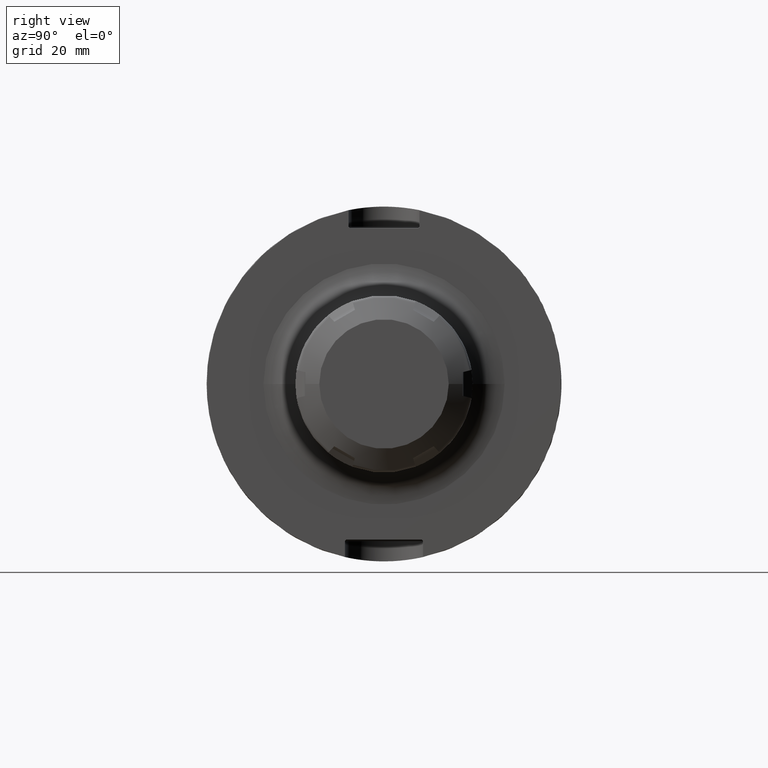
[diagram: clean part render]
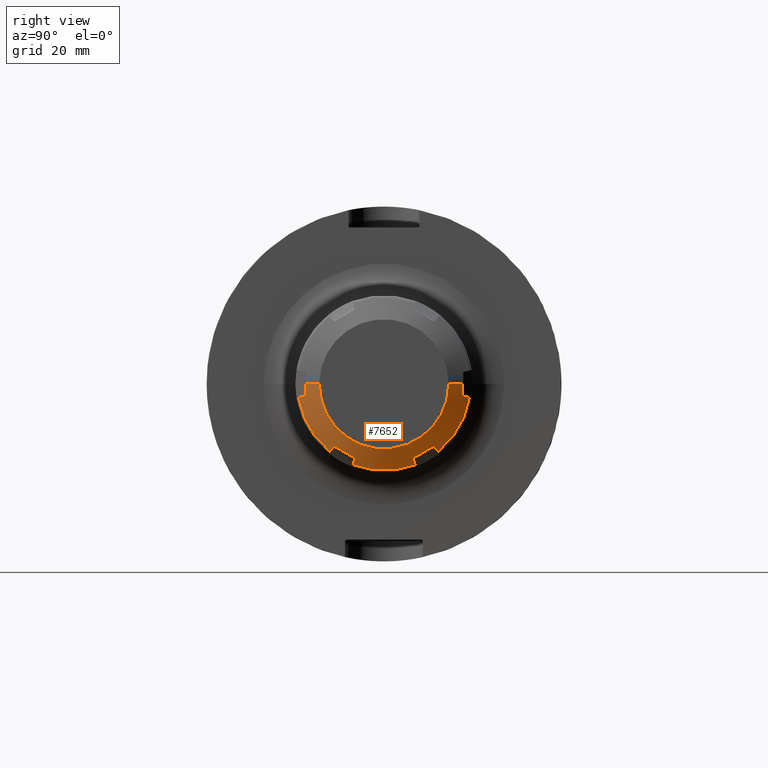
[diagram: same view with one face highlighted and labeled with its STEP entity id]
A machine part, right view. The second image highlights one B-rep face of the part: STEP entity #7652.
In plain terms, the highlighted conical surface has half-angle 60 deg.
Its self-contained STEP definition (entity closure, byte-faithful):
#6798=CARTESIAN_POINT('',(2.007435737753E1,1.400118510268E1,-1.755076396401E1));
#6799=CARTESIAN_POINT('',(1.989202963548E1,1.422154361045E1,-1.777895187872E1));
#6800=CARTESIAN_POINT('',(1.952459463873E1,1.466553630405E1,-1.823871977204E1));
#6801=CARTESIAN_POINT('',(1.915160861205E1,1.511608354504E1,-1.870527509788E1));
#6802=CARTESIAN_POINT('',(1.896372960121E1,1.534299650585E1,-1.894025034738E1));
#6804=CARTESIAN_POINT('',(2.007435737753E1,8.198814897322E0,-2.090076396401E1));
#6805=CARTESIAN_POINT('',(2.013850261850E1,8.843656557694E0,-2.052846445781E1));
#6806=CARTESIAN_POINT('',(2.022485531472E1,1.013317723897E1,-1.978395934535E1));
#6807=CARTESIAN_POINT('',(2.022485360844E1,1.206686210227E1,-1.866754586900E1));
#6808=CARTESIAN_POINT('',(2.013850094754E1,1.335636024026E1,-1.792305377191E1));
#6809=CARTESIAN_POINT('',(2.007435737753E1,1.400118510268E1,-1.755076396401E1));
#6811=CARTESIAN_POINT('',(1.896372960121E1,8.731239701949E0,-2.275754991793E1));
#6812=CARTESIAN_POINT('',(1.915154885340E1,8.641230285410E0,-2.244364977861E1));
#6813=CARTESIAN_POINT('',(1.952447514954E1,8.462483784300E0,-2.182028664885E1));
#6814=CARTESIAN_POINT('',(1.989196990744E1,8.286280817645E0,-2.120579387789E1));
#6815=CARTESIAN_POINT('',(2.007435737753E1,8.198814897322E0,-2.090076396401E1));
#6817=CARTESIAN_POINT('',(1.896372960121E1,0.E0,0.E0));
#6818=DIRECTION('',(-1.E0,0.E0,0.E0));
#6819=DIRECTION('',(0.E0,3.582047057210E-1,-9.336430735561E-1));
#6820=AXIS2_PLACEMENT_3D('',#6817,#6818,#6819);
#6822=CARTESIAN_POINT('',(2.007435737753E1,-8.198814897322E0,
-2.090076396401E1));
#6823=CARTESIAN_POINT('',(1.989202963548E1,-8.286252174404E0,
-2.120569398704E1));
#6824=CARTESIAN_POINT('',(1.952459463873E1,-8.462426503065E0,
-2.182008688545E1));
#6825=CARTESIAN_POINT('',(1.915160861205E1,-8.641201647020E0,
-2.244354990467E1));
#6826=CARTESIAN_POINT('',(1.896372960121E1,-8.731239701949E0,
-2.275754991793E1));
#6828=CARTESIAN_POINT('',(2.007435737753E1,-1.400118510268E1,
-1.755076396401E1));
#6829=CARTESIAN_POINT('',(2.013850261850E1,-1.335634344231E1,
-1.792306347021E1));
#6830=CARTESIAN_POINT('',(2.022485531472E1,-1.206682276103E1,
-1.866756858268E1));
#6831=CARTESIAN_POINT('',(2.022485360844E1,-1.013313789773E1,
-1.978398205903E1));
#6832=CARTESIAN_POINT('',(2.013850094754E1,-8.843639759743E0,
-2.052847415612E1));
#6833=CARTESIAN_POINT('',(2.007435737753E1,-8.198814897322E0,
-2.090076396401E1));
#6835=CARTESIAN_POINT('',(1.896372960121E1,-1.534299650585E1,
-1.894025034738E1));
#6836=CARTESIAN_POINT('',(1.915154885340E1,-1.511615571921E1,
-1.870534983642E1));
#6837=CARTESIAN_POINT('',(1.952447514954E1,-1.466568066362E1,
-1.823886926074E1));
#6838=CARTESIAN_POINT('',(1.989196990744E1,-1.422161579685E1,
-1.777902662992E1));
#6839=CARTESIAN_POINT('',(2.007435737753E1,-1.400118510268E1,
-1.755076396401E1));
#6841=CARTESIAN_POINT('',(1.896372960121E1,0.E0,0.E0));
#6842=DIRECTION('',(-1.E0,0.E0,0.E0));
#6843=DIRECTION('',(0.E0,-6.294562669065E-1,-7.770359116876E-1));
#6844=AXIS2_PLACEMENT_3D('',#6841,#6842,#6843);
#6846=CARTESIAN_POINT('',(2.007435737753E1,-2.22E1,-3.35E0));
#6847=CARTESIAN_POINT('',(1.989202963548E1,-2.250779578486E1,
-3.426742108322E0));
#6848=CARTESIAN_POINT('',(1.952459463873E1,-2.312796280711E1,
-3.581367113410E0));
#6849=CARTESIAN_POINT('',(1.915160861205E1,-2.375728519206E1,
-3.738274806794E0));
#6850=CARTESIAN_POINT('',(1.896372960121E1,-2.407423620780E1,
-3.817299570546E0));
#6852=CARTESIAN_POINT('',(2.021946643670E1,-2.22E1,-4.505137681520E-14));
#6853=CARTESIAN_POINT('',(2.021946643670E1,-2.22E1,-3.723412104007E-1));
#6854=CARTESIAN_POINT('',(2.020864224929E1,-2.22E1,-1.116942255784E0));
#6855=CARTESIAN_POINT('',(2.016008769471E1,-2.22E1,-2.233495806650E0));
#6856=CARTESIAN_POINT('',(2.010641792581E1,-2.22E1,-2.977840628173E0));
#6857=CARTESIAN_POINT('',(2.007435737753E1,-2.22E1,-3.35E0));
#6859=DIRECTION('',(-5.E-1,-8.660254037844E-1,0.E0));
#6860=VECTOR('',#6859,4.561067126598E0);
#6861=CARTESIAN_POINT('',(2.25E1,-1.825E1,0.E0));
#6862=LINE('',#6861,#6860);
#6863=CARTESIAN_POINT('',(2.25E1,0.E0,0.E0));
#6864=DIRECTION('',(-1.E0,0.E0,0.E0));
#6865=DIRECTION('',(0.E0,1.E0,0.E0));
#6866=AXIS2_PLACEMENT_3D('',#6863,#6864,#6865);
#6868=DIRECTION('',(-5.E-1,8.660254037844E-1,0.E0));
#6869=VECTOR('',#6868,4.561067126598E0);
#6870=CARTESIAN_POINT('',(2.25E1,1.825E1,0.E0));
#6871=LINE('',#6870,#6869);
#6872=CARTESIAN_POINT('',(2.007435737753E1,2.22E1,-3.35E0));
#6873=CARTESIAN_POINT('',(2.010642291935E1,2.22E1,-2.977782663007E0));
#6874=CARTESIAN_POINT('',(2.016009585532E1,2.22E1,-2.233360618265E0));
#6875=CARTESIAN_POINT('',(2.020864465134E1,2.22E1,-1.116836975823E0));
#6876=CARTESIAN_POINT('',(2.021946643670E1,2.22E1,-3.722962341462E-1));
#6877=CARTESIAN_POINT('',(2.021946643670E1,2.22E1,0.E0));
#6879=CARTESIAN_POINT('',(1.896372960121E1,2.407423620780E1,-3.817299570546E0));
#6880=CARTESIAN_POINT('',(1.915154885340E1,2.375738600462E1,-3.738299942188E0));
#6881=CARTESIAN_POINT('',(1.952447514954E1,2.312816444792E1,-3.581417388109E0));
#6882=CARTESIAN_POINT('',(1.989196990744E1,2.250789661449E1,-3.426767247974E0));
#6883=CARTESIAN_POINT('',(2.007435737753E1,2.22E1,-3.35E0));
#6885=CARTESIAN_POINT('',(1.896372960121E1,0.E0,0.E0));
#6886=DIRECTION('',(-1.E0,0.E0,0.E0));
#6887=DIRECTION('',(0.E0,9.876609726275E-1,-1.566071618686E-1));
#6888=AXIS2_PLACEMENT_3D('',#6885,#6886,#6887);
#7157=CARTESIAN_POINT('',(2.021946643670E1,-2.22E1,-4.505137681520E-14));
#7224=CARTESIAN_POINT('',(2.021946643670E1,2.22E1,0.E0));
#7494=CARTESIAN_POINT('',(2.25E1,1.825E1,0.E0));
#7495=CARTESIAN_POINT('',(2.25E1,-1.825E1,0.E0));
#7496=VERTEX_POINT('',#7494);
#7497=VERTEX_POINT('',#7495);
#7508=VERTEX_POINT('',#7224);
#7509=VERTEX_POINT('',#6872);
#7510=VERTEX_POINT('',#6879);
#7553=VERTEX_POINT('',#7157);
#7555=VERTEX_POINT('',#6846);
#7556=VERTEX_POINT('',#6850);
#7568=VERTEX_POINT('',#6822);
#7569=VERTEX_POINT('',#6826);
#7570=VERTEX_POINT('',#6828);
#7571=VERTEX_POINT('',#6835);
#7583=VERTEX_POINT('',#6798);
#7584=VERTEX_POINT('',#6802);
#7585=VERTEX_POINT('',#6804);
#7586=VERTEX_POINT('',#6811);
#7614=CARTESIAN_POINT('',(2.073186480061E1,0.E0,0.E0));
#7615=DIRECTION('',(-1.E0,0.E0,0.E0));
#7616=DIRECTION('',(0.E0,1.E0,0.E0));
#7617=AXIS2_PLACEMENT_3D('',#7614,#7615,#7616);
#7618=CONICAL_SURFACE('',#7617,2.13125E1,6.E1);
#7620=ORIENTED_EDGE('',*,*,#7619,.F.);
#7622=ORIENTED_EDGE('',*,*,#7621,.F.);
#7624=ORIENTED_EDGE('',*,*,#7623,.F.);
#7626=ORIENTED_EDGE('',*,*,#7625,.T.);
#7628=ORIENTED_EDGE('',*,*,#7627,.F.);
#7630=ORIENTED_EDGE('',*,*,#7629,.F.);
#7632=ORIENTED_EDGE('',*,*,#7631,.F.);
#7634=ORIENTED_EDGE('',*,*,#7633,.T.);
#7636=ORIENTED_EDGE('',*,*,#7635,.F.);
#7638=ORIENTED_EDGE('',*,*,#7637,.F.);
#7640=ORIENTED_EDGE('',*,*,#7639,.F.);
#7641=ORIENTED_EDGE('',*,*,#7607,.F.);
#7643=ORIENTED_EDGE('',*,*,#7642,.T.);
#7645=ORIENTED_EDGE('',*,*,#7644,.F.);
#7647=ORIENTED_EDGE('',*,*,#7646,.F.);
#7649=ORIENTED_EDGE('',*,*,#7648,.T.);
#7650=EDGE_LOOP('',(#7620,#7622,#7624,#7626,#7628,#7630,#7632,#7634,#7636,#7638,
#7640,#7641,#7643,#7645,#7647,#7649));
#7651=FACE_OUTER_BOUND('',#7650,.F.);
#7652=ADVANCED_FACE('',(#7651),#7618,.T.);
#6803=B_SPLINE_CURVE_WITH_KNOTS('',3,(#6798,#6799,#6800,#6801,#6802),
.UNSPECIFIED.,.F.,.F.,(4,1,4),(0.E0,5.E-1,1.E0),.UNSPECIFIED.);
#6810=B_SPLINE_CURVE_WITH_KNOTS('',3,(#6804,#6805,#6806,#6807,#6808,#6809),
.UNSPECIFIED.,.F.,.F.,(4,1,1,4),(0.E0,3.333333333333E-1,6.666666666667E-1,1.E0),
.UNSPECIFIED.);
#6816=B_SPLINE_CURVE_WITH_KNOTS('',3,(#6811,#6812,#6813,#6814,#6815),
.UNSPECIFIED.,.F.,.F.,(4,1,4),(0.E0,5.E-1,1.E0),.UNSPECIFIED.);
#6821=CIRCLE('',#6820,2.4375E1);
#6827=B_SPLINE_CURVE_WITH_KNOTS('',3,(#6822,#6823,#6824,#6825,#6826),
.UNSPECIFIED.,.F.,.F.,(4,1,4),(0.E0,5.E-1,1.E0),.UNSPECIFIED.);
#6834=B_SPLINE_CURVE_WITH_KNOTS('',3,(#6828,#6829,#6830,#6831,#6832,#6833),
.UNSPECIFIED.,.F.,.F.,(4,1,1,4),(0.E0,3.333333333333E-1,6.666666666667E-1,1.E0),
.UNSPECIFIED.);
#6840=B_SPLINE_CURVE_WITH_KNOTS('',3,(#6835,#6836,#6837,#6838,#6839),
.UNSPECIFIED.,.F.,.F.,(4,1,4),(0.E0,5.E-1,1.E0),.UNSPECIFIED.);
#6845=CIRCLE('',#6844,2.4375E1);
#6851=B_SPLINE_CURVE_WITH_KNOTS('',3,(#6846,#6847,#6848,#6849,#6850),
.UNSPECIFIED.,.F.,.F.,(4,1,4),(0.E0,5.E-1,1.E0),.UNSPECIFIED.);
#6858=B_SPLINE_CURVE_WITH_KNOTS('',3,(#6852,#6853,#6854,#6855,#6856,#6857),
.UNSPECIFIED.,.F.,.F.,(4,1,1,4),(0.E0,3.333333333333E-1,6.666666666667E-1,1.E0),
.UNSPECIFIED.);
#6867=CIRCLE('',#6866,1.825E1);
#6878=B_SPLINE_CURVE_WITH_KNOTS('',3,(#6872,#6873,#6874,#6875,#6876,#6877),
.UNSPECIFIED.,.F.,.F.,(4,1,1,4),(0.E0,3.333333333333E-1,6.666666666667E-1,1.E0),
.UNSPECIFIED.);
#6884=B_SPLINE_CURVE_WITH_KNOTS('',3,(#6879,#6880,#6881,#6882,#6883),
.UNSPECIFIED.,.F.,.F.,(4,1,4),(0.E0,5.E-1,1.E0),.UNSPECIFIED.);
#6889=CIRCLE('',#6888,2.4375E1);
#7607=EDGE_CURVE('',#7496,#7497,#6867,.T.);
#7619=EDGE_CURVE('',#7583,#7584,#6803,.T.);
#7621=EDGE_CURVE('',#7585,#7583,#6810,.T.);
#7623=EDGE_CURVE('',#7586,#7585,#6816,.T.);
#7625=EDGE_CURVE('',#7586,#7569,#6821,.T.);
#7627=EDGE_CURVE('',#7568,#7569,#6827,.T.);
#7629=EDGE_CURVE('',#7570,#7568,#6834,.T.);
#7631=EDGE_CURVE('',#7571,#7570,#6840,.T.);
#7633=EDGE_CURVE('',#7571,#7556,#6845,.T.);
#7635=EDGE_CURVE('',#7555,#7556,#6851,.T.);
#7637=EDGE_CURVE('',#7553,#7555,#6858,.T.);
#7639=EDGE_CURVE('',#7497,#7553,#6862,.T.);
#7642=EDGE_CURVE('',#7496,#7508,#6871,.T.);
#7644=EDGE_CURVE('',#7509,#7508,#6878,.T.);
#7646=EDGE_CURVE('',#7510,#7509,#6884,.T.);
#7648=EDGE_CURVE('',#7510,#7584,#6889,.T.);